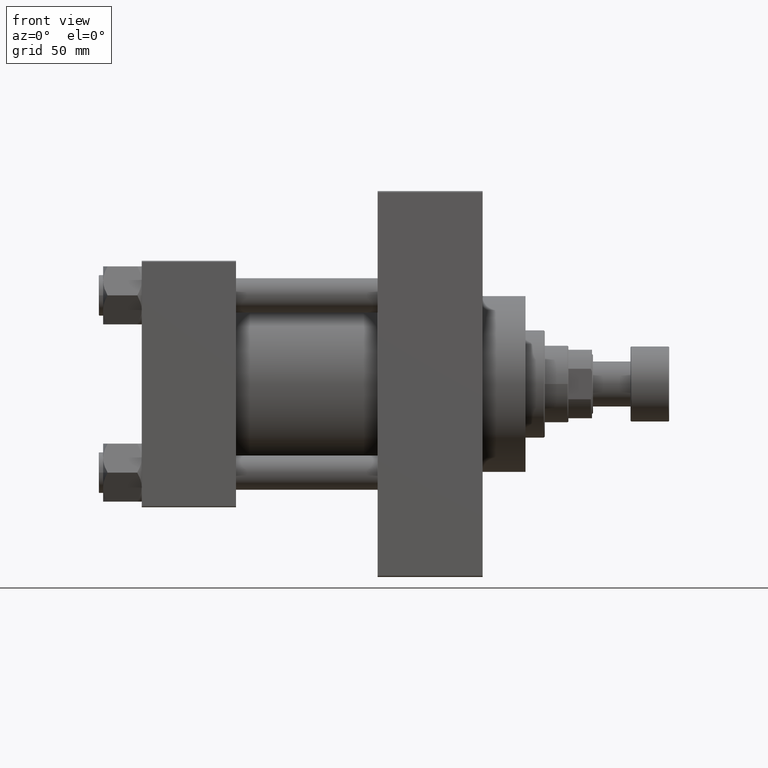
[diagram: clean part render]
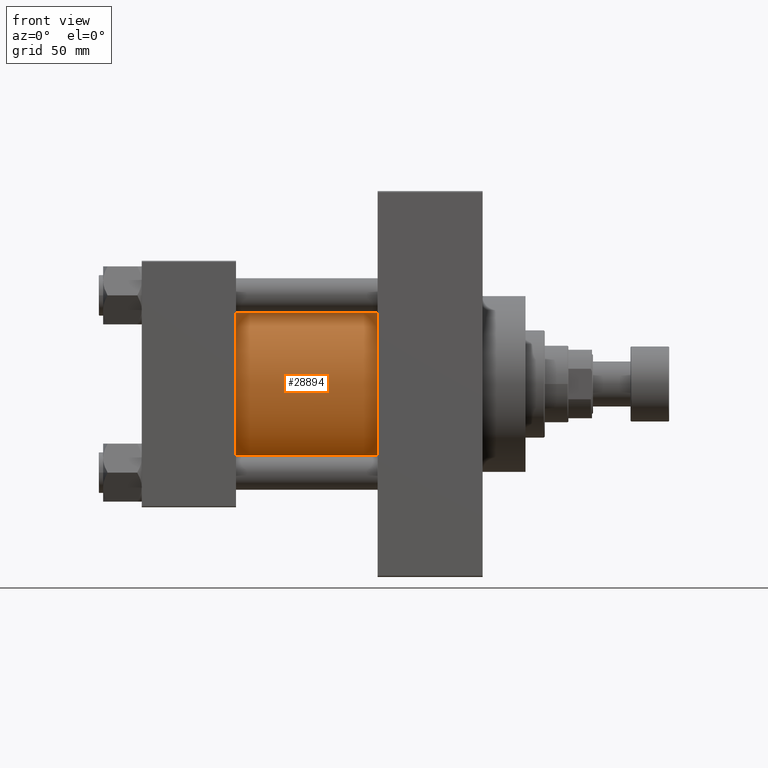
[diagram: same view with one face highlighted and labeled with its STEP entity id]
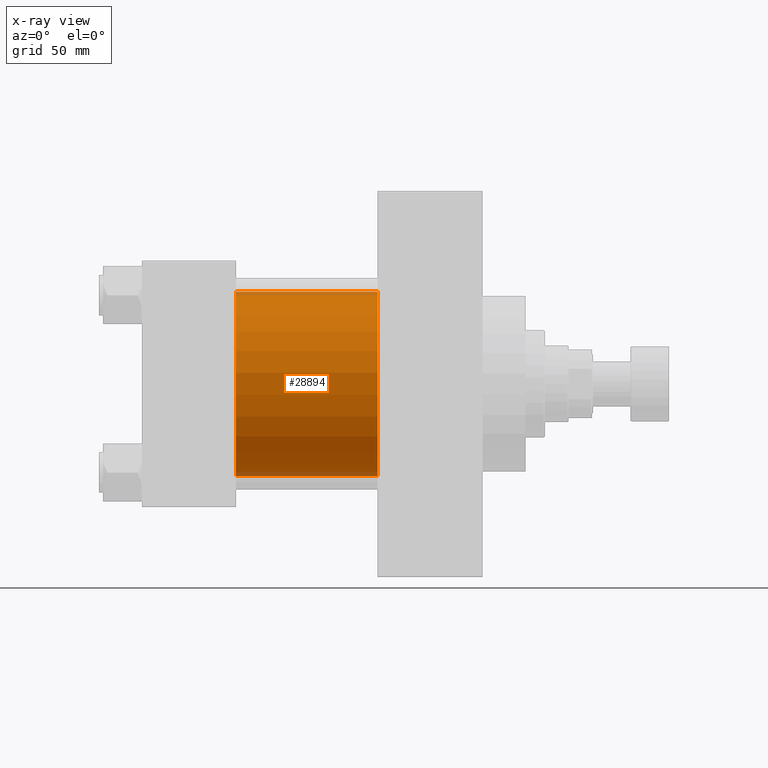
[diagram: x-ray of the same camera — body ghosted, the highlighted face saturated]
A machine part, front view. The second image highlights one B-rep face of the part: STEP entity #28894.
The next image is the same camera in x-ray: the body ghosted, the highlighted face saturated — about 4% of this face is hidden behind the body in this view.
In plain terms, the highlighted cylindrical surface (partial cylindrical patch) has radius 43 mm, axis along (-1, -0, -0).
Its self-contained STEP definition (entity closure, byte-faithful):
#416 = ORIENTED_EDGE ( 'NONE', *, *, #30634, .T. ) ;
#1937 = CARTESIAN_POINT ( 'NONE',  ( 110.0000000000000000, -2.602085213965210642E-15, 43.00000000000000000 ) ) ;
#3527 = DIRECTION ( 'NONE',  ( 0.000000000000000000, 0.000000000000000000, 1.000000000000000000 ) ) ;
#3977 = VERTEX_POINT ( 'NONE', #32688 ) ;
#4527 = VERTEX_POINT ( 'NONE', #1937 ) ;
#8900 = AXIS2_PLACEMENT_3D ( 'NONE', #17901, #29094, #3527 ) ;
#9763 = LINE ( 'NONE', #24600, #36193 ) ;
#9881 = AXIS2_PLACEMENT_3D ( 'NONE', #34864, #12698, #46757 ) ;
#12698 = DIRECTION ( 'NONE',  ( 1.000000000000000000, 0.000000000000000000, 0.000000000000000000 ) ) ;
#15124 = CIRCLE ( 'NONE', #8900, 43.00000000000000000 ) ;
#16132 = LINE ( 'NONE', #19773, #28480 ) ;
#16184 = DIRECTION ( 'NONE',  ( -1.000000000000000000, -0.000000000000000000, -0.000000000000000000 ) ) ;
#16686 = AXIS2_PLACEMENT_3D ( 'NONE', #34682, #16184, #31031 ) ;
#16897 = FACE_OUTER_BOUND ( 'NONE', #40269, .T. ) ;
#17901 = CARTESIAN_POINT ( 'NONE',  ( 44.00000000000000000, -2.602085213965210642E-15, 0.000000000000000000 ) ) ;
#19773 = CARTESIAN_POINT ( 'NONE',  ( 110.0000000000000000, 2.663896022368408223E-15, -43.00000000000000000 ) ) ;
#20542 = CYLINDRICAL_SURFACE ( 'NONE', #16686, 43.00000000000000000 ) ;
#21384 = ORIENTED_EDGE ( 'NONE', *, *, #32734, .F. ) ;
#22812 = VERTEX_POINT ( 'NONE', #33451 ) ;
#23654 = DIRECTION ( 'NONE',  ( -1.000000000000000000, -0.000000000000000000, -0.000000000000000000 ) ) ;
#24387 = ORIENTED_EDGE ( 'NONE', *, *, #35122, .F. ) ;
#24600 = CARTESIAN_POINT ( 'NONE',  ( 110.0000000000000000, -2.602085213965210642E-15, 43.00000000000000000 ) ) ;
#28480 = VECTOR ( 'NONE', #23654, 1000.000000000000000 ) ;
#28739 = EDGE_CURVE ( 'NONE', #33551, #3977, #15124, .T. ) ;
#28894 = ADVANCED_FACE ( 'NONE', ( #16897 ), #20542, .T. ) ;
#29094 = DIRECTION ( 'NONE',  ( 1.000000000000000000, -0.000000000000000000, 0.000000000000000000 ) ) ;
#30634 = EDGE_CURVE ( 'NONE', #4527, #33551, #9763, .T. ) ;
#31031 = DIRECTION ( 'NONE',  ( 0.000000000000000000, 0.000000000000000000, 1.000000000000000000 ) ) ;
#32688 = CARTESIAN_POINT ( 'NONE',  ( 44.00000000000000000, 2.663896022368408223E-15, -43.00000000000000000 ) ) ;
#32734 = EDGE_CURVE ( 'NONE', #22812, #3977, #16132, .T. ) ;
#33451 = CARTESIAN_POINT ( 'NONE',  ( 110.0000000000000000, 2.663896022368408223E-15, -43.00000000000000000 ) ) ;
#33551 = VERTEX_POINT ( 'NONE', #43509 ) ;
#34682 = CARTESIAN_POINT ( 'NONE',  ( 110.0000000000000000, -2.602085213965210642E-15, 0.000000000000000000 ) ) ;
#34766 = CIRCLE ( 'NONE', #9881, 43.00000000000000000 ) ;
#34864 = CARTESIAN_POINT ( 'NONE',  ( 110.0000000000000000, -2.602085213965210642E-15, 0.000000000000000000 ) ) ;
#35122 = EDGE_CURVE ( 'NONE', #4527, #22812, #34766, .T. ) ;
#36193 = VECTOR ( 'NONE', #39467, 1000.000000000000000 ) ;
#38665 = ORIENTED_EDGE ( 'NONE', *, *, #28739, .T. ) ;
#39467 = DIRECTION ( 'NONE',  ( -1.000000000000000000, -0.000000000000000000, -0.000000000000000000 ) ) ;
#40269 = EDGE_LOOP ( 'NONE', ( #21384, #24387, #416, #38665 ) ) ;
#43509 = CARTESIAN_POINT ( 'NONE',  ( 44.00000000000000000, -2.602085213965210642E-15, 43.00000000000000000 ) ) ;
#46757 = DIRECTION ( 'NONE',  ( 0.000000000000000000, 0.000000000000000000, -1.000000000000000000 ) ) ;